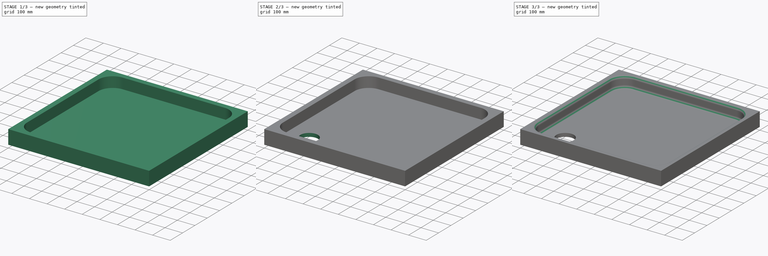
[diagram: build sequence overview — one tinted view per stage of 3, left to right]
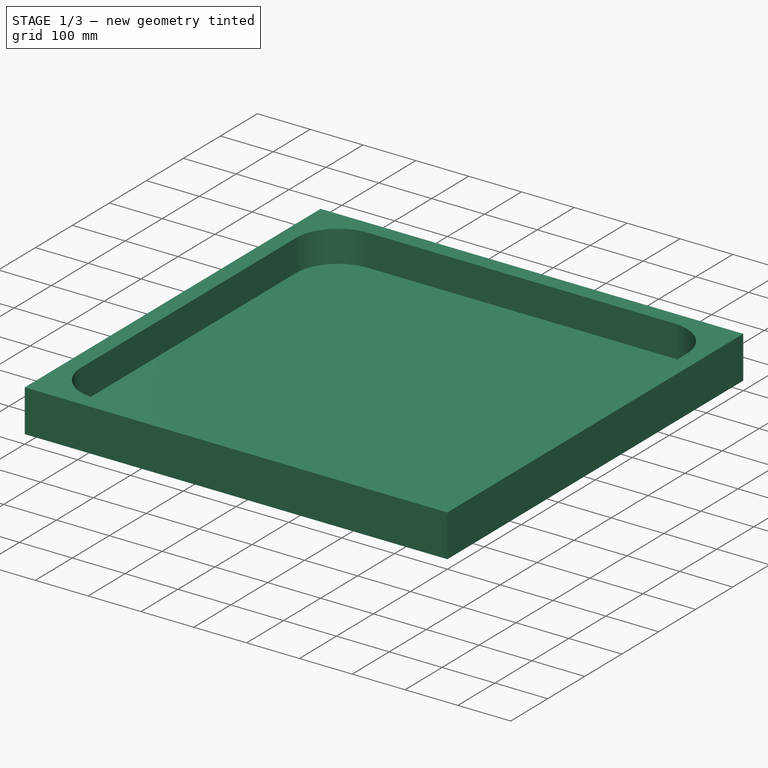
[diagram: stage 1 of 3 — iso view after this stage's code; geometry added in this stage tinted green]
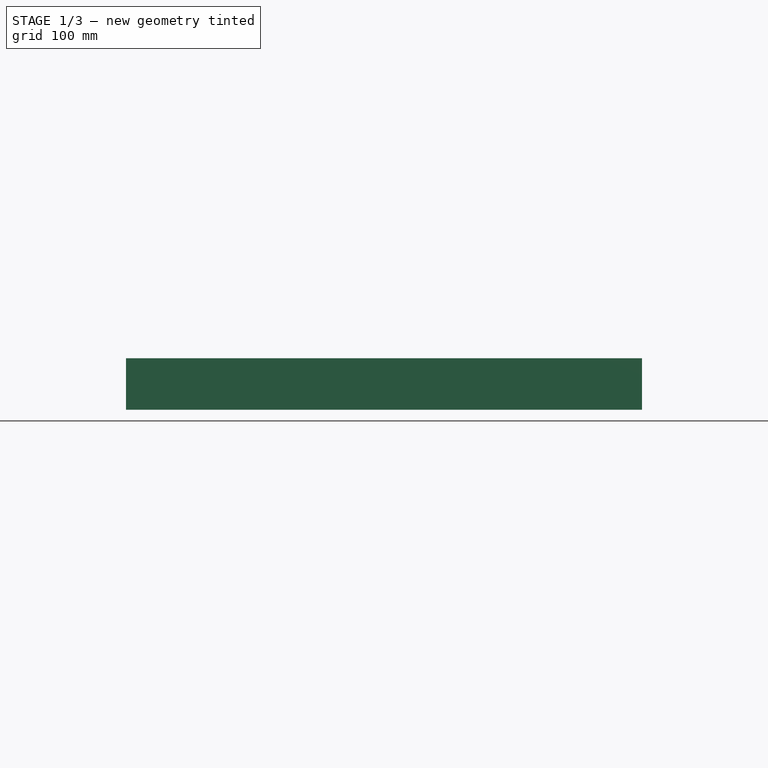
[diagram: stage 1 of 3 — front view after this stage's code; geometry added in this stage tinted green]
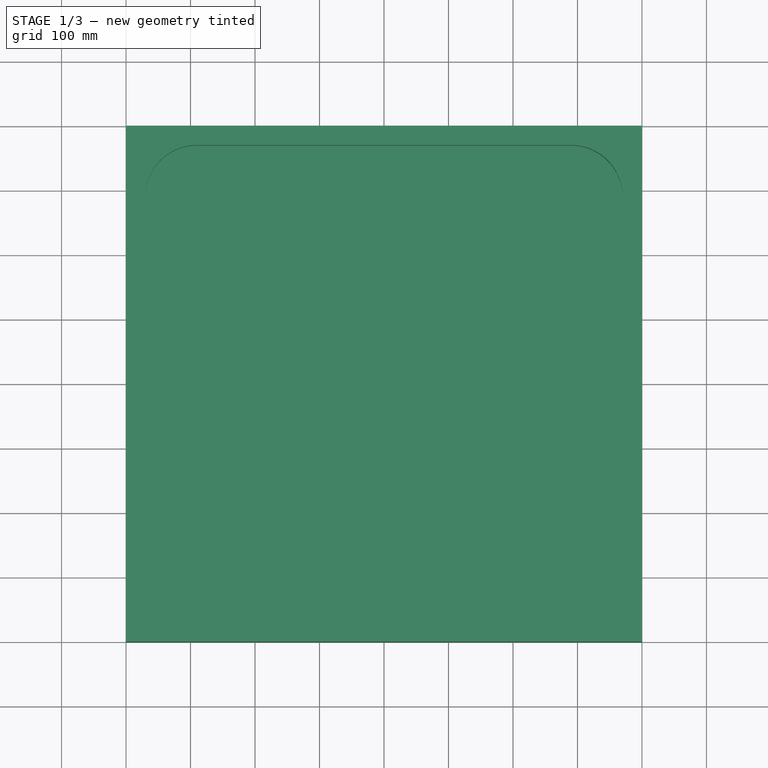
[diagram: stage 1 of 3 — top view after this stage's code; geometry added in this stage tinted green]
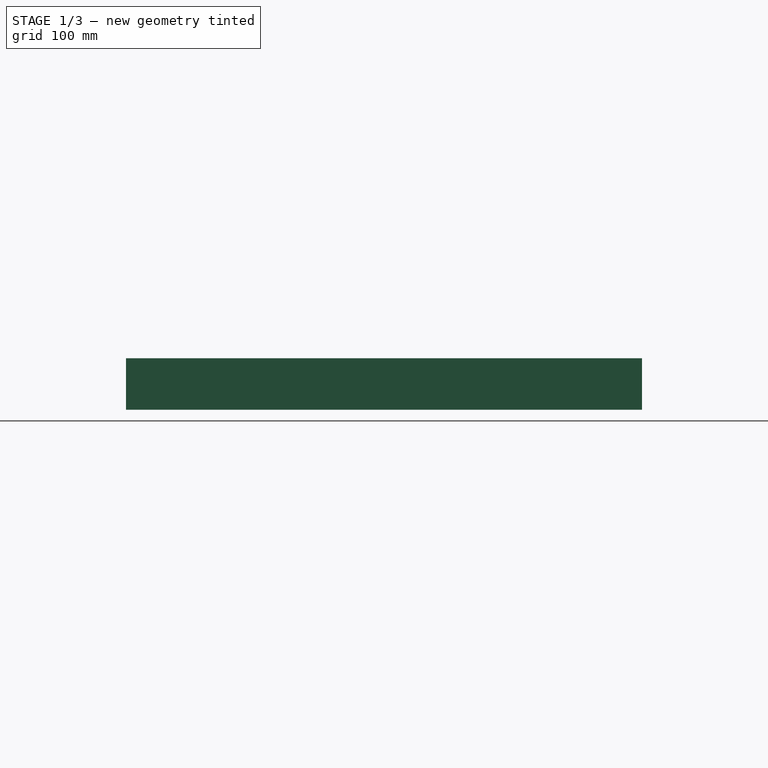
[diagram: stage 1 of 3 — right view after this stage's code; geometry added in this stage tinted green]
FCSTD DOCUMENT  (FreeCAD 0.17R8248 (Git))
Label: 80x80x8cm shower box
License: CreativeCommons Attribution
LicenseURL: http://creativecommons.org/licenses/by/4.0/
objects: Sketcher::SketchObject×3, PartDesign::Pocket×2, PartDesign::Fillet×2, PartDesign::Pad×1, PartDesign::Body×1
note: 12 computed .brp shape members not serialized (recipe doc carries the construction recipe); baked Part::Feature solids carry a one-line shape summary decoded from their .brp

FEATURE [Sketcher::SketchObject] Sketch
  MapMode = 5
  Support = -> [XY_Plane]
  sketch-geometry (4):
    g0: LineSegment StartX=0 StartY=0 StartZ=0 EndX=800 EndY=0 EndZ=0
    g1: LineSegment StartX=800 StartY=0 StartZ=0 EndX=800 EndY=800 EndZ=0
    g2: LineSegment StartX=800 StartY=800 StartZ=0 EndX=0 EndY=800 EndZ=0
    g3: LineSegment StartX=0 StartY=800 StartZ=0 EndX=0 EndY=0 EndZ=0
  constraints (11):
    c: Coincident(g0,g1)
    c: Coincident(g1,g2)
    c: Coincident(g2,g3)
    c: Coincident(g3,g0)
    c: Horizontal(g0)
    c: Horizontal(g2)
    c: Vertical(g1)
    c: Vertical(g3)
    c: Coincident(g0,g-1)
    c: DistanceX(g2,g2) = 800
    c: DistanceY(g3,g3) = 800
FEATURE [PartDesign::Pad] Pad
  Length = 80
  Length2 = 100
  Profile = -> Sketch
  Type = 0
FEATURE [Sketcher::SketchObject] Sketch001
  ExternalGeometry = -> [Pad]
  MapMode = 5
  Placement = pos=(0,0,80) rot=(0,0,1;0rad)
  Support = -> [Pad]
  sketch-geometry (8):
    g0: LineSegment StartX=30 StartY=110 StartZ=0 EndX=30 EndY=690 EndZ=0
    g1: ArcOfCircle CenterX=110 CenterY=690 CenterZ=0 NormalX=0 NormalY=0 NormalZ=1 Radius=80 StartAngle=1.5708 EndAngle=3.14159
    g2: LineSegment StartX=110 StartY=770 StartZ=0 EndX=690 EndY=770 EndZ=0
    g3: ArcOfCircle CenterX=690 CenterY=690 CenterZ=0 NormalX=0 NormalY=0 NormalZ=1 Radius=80 StartAngle=0 EndAngle=1.5708
    g4: LineSegment StartX=770 StartY=690 StartZ=0 EndX=770 EndY=110 EndZ=0
    g5: ArcOfCircle CenterX=690 CenterY=110 CenterZ=0 NormalX=0 NormalY=0 NormalZ=1 Radius=80 StartAngle=4.71239 EndAngle=6.28319
    g6: LineSegment StartX=690 StartY=30 StartZ=0 EndX=110 EndY=30 EndZ=0
    g7: ArcOfCircle CenterX=110 CenterY=110 CenterZ=0 NormalX=0 NormalY=0 NormalZ=1 Radius=80 StartAngle=3.14159 EndAngle=4.71239
  constraints (21):
    c: Vertical(g0)
    c: Tangent(g0,g1) = 1.5708
    c: Tangent(g1,g2) = 1.5708
    c: Tangent(g2,g3) = 1.5708
    c: Tangent(g3,g4) = 1.5708
    c: Tangent(g4,g5) = 1.5708
    c: Tangent(g5,g6) = 1.5708
    c: Tangent(g6,g7) = 1.5708
    c: Coincident(g0,g7)
    c: Horizontal(g6)
    c: Horizontal(g2)
    c: Vertical(g4)
    c: DistanceX(g-1,g0) = 30
    c: DistanceX(g4,g-4) = 30
    c: DistanceY(g-1,g6) = 30
    c: DistanceY(g1,g-3) = 30
    c: Radius(g1) = 80
    c: Radius(g3) = 80
    c: Radius(g5) = 80
    c: Radius(g7) = 80
    c: Tangent(g0,g7,g0) = 1.5708
FEATURE [PartDesign::Pocket] Pocket
  BaseFeature = -> Pad
  Length = 60
  Profile = -> Sketch001
  Type = 0
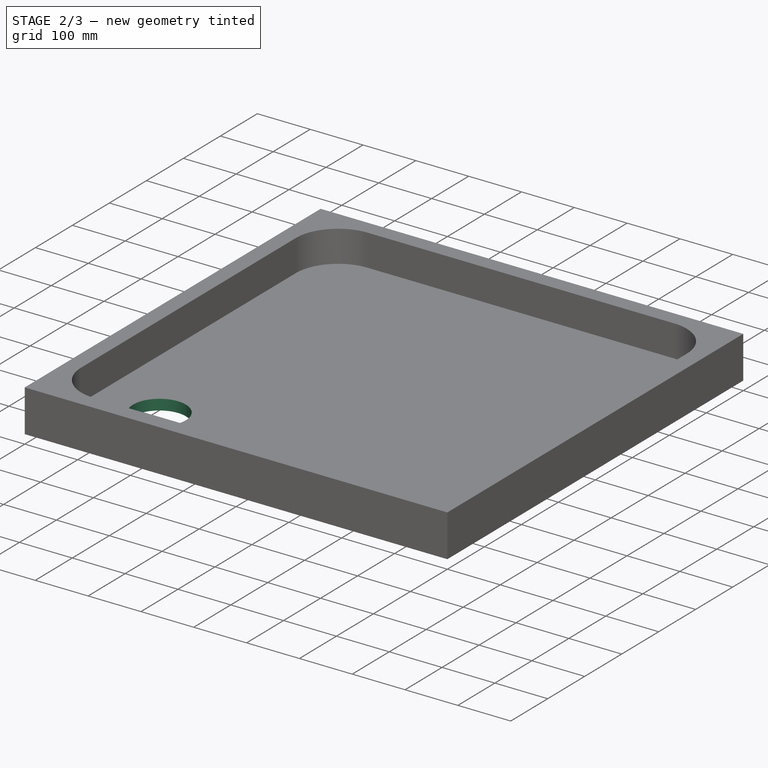
[diagram: stage 2 of 3 — iso view after this stage's code; geometry added in this stage tinted green]
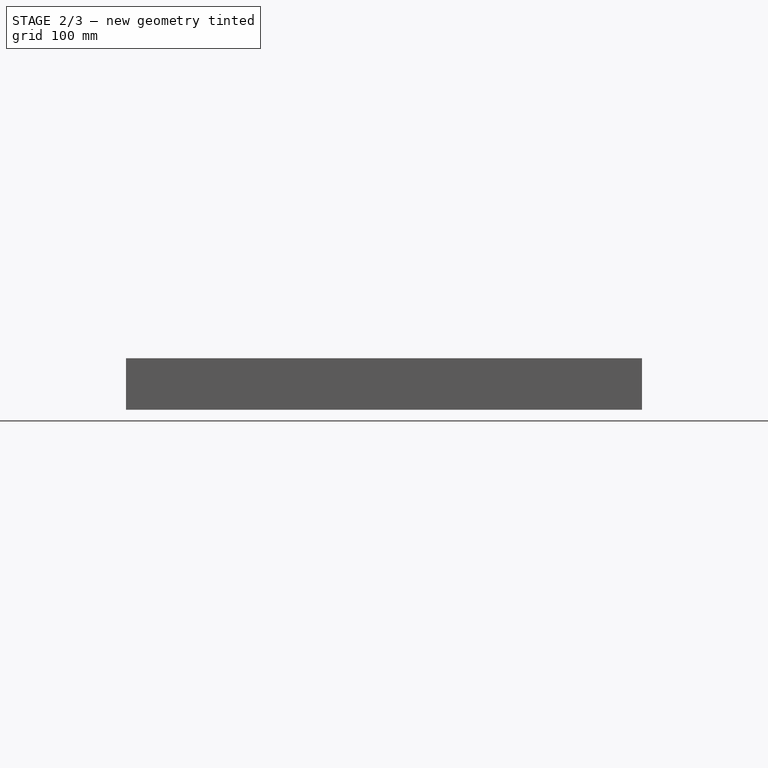
[diagram: stage 2 of 3 — front view after this stage's code; geometry added in this stage tinted green]
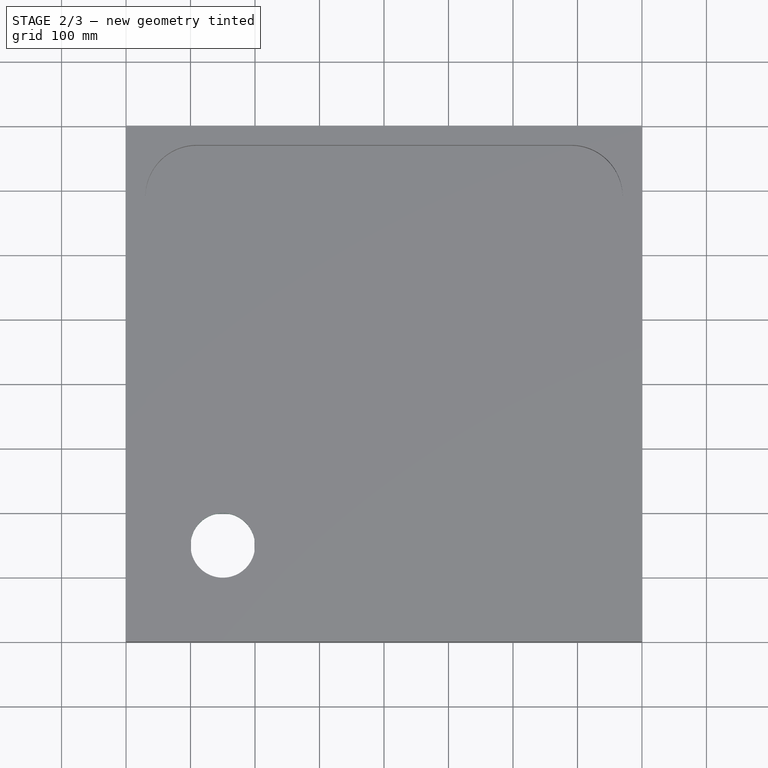
[diagram: stage 2 of 3 — top view after this stage's code; geometry added in this stage tinted green]
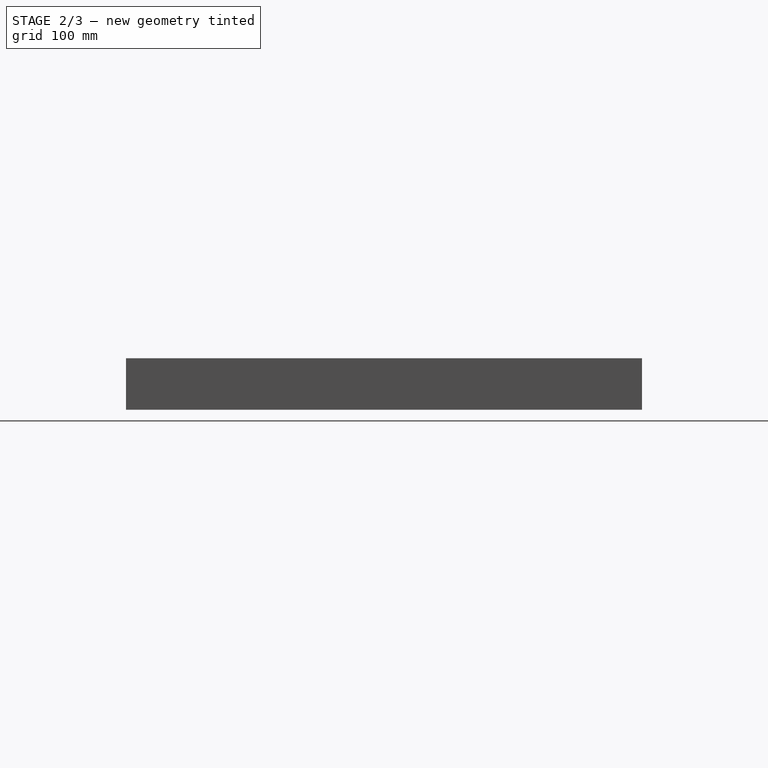
[diagram: stage 2 of 3 — right view after this stage's code; geometry added in this stage tinted green]
FEATURE [Sketcher::SketchObject] Sketch002
  ExternalGeometry = -> [Pocket]
  MapMode = 5
  Placement = pos=(0,0,20) rot=(0,0,1;0rad)
  Support = -> [Pocket]
  sketch-geometry (1):
    g0: Circle CenterX=150 CenterY=150 CenterZ=0 NormalX=0 NormalY=0 NormalZ=1 Radius=50
  constraints (3):
    c: DistanceY(g-3,g0) = 40
    c: DistanceX(g-3,g0) = 120
    c: Radius(g0) = 50
FEATURE [PartDesign::Pocket] Pocket001
  BaseFeature = -> Pocket
  Length = 20
  Profile = -> Sketch002
  Type = 0
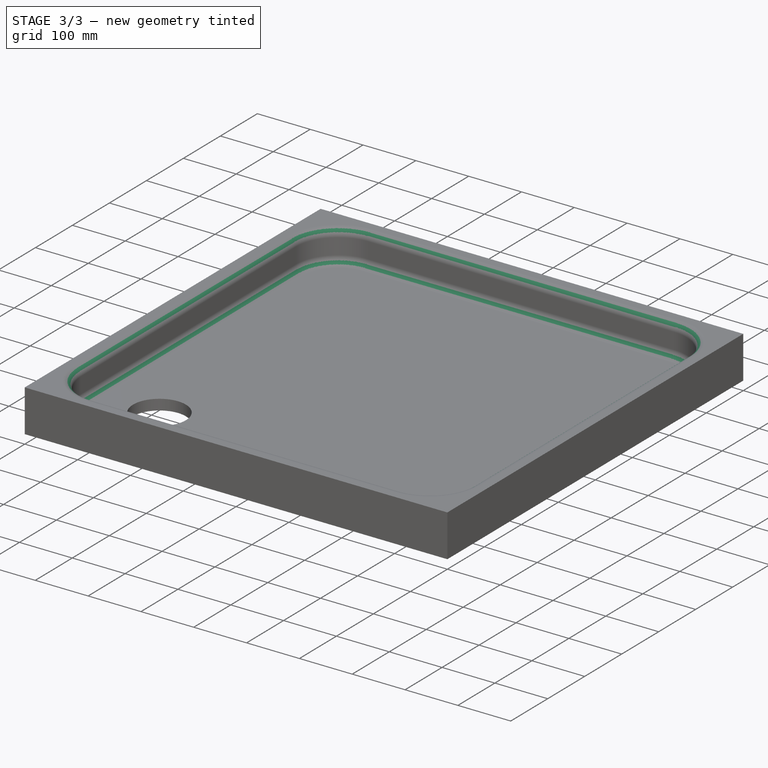
[diagram: stage 3 of 3 — iso view after this stage's code; geometry added in this stage tinted green]
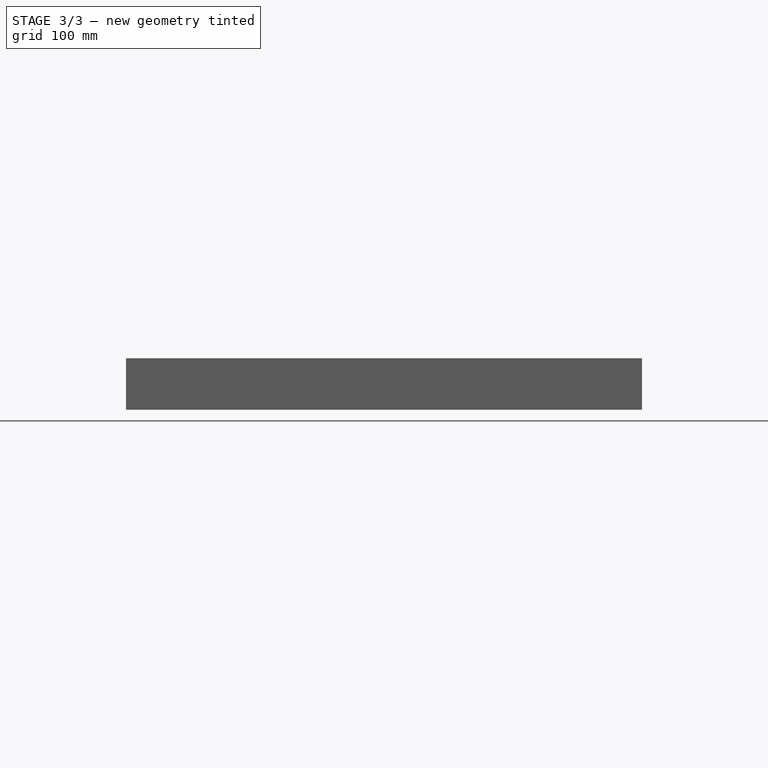
[diagram: stage 3 of 3 — front view after this stage's code; geometry added in this stage tinted green]
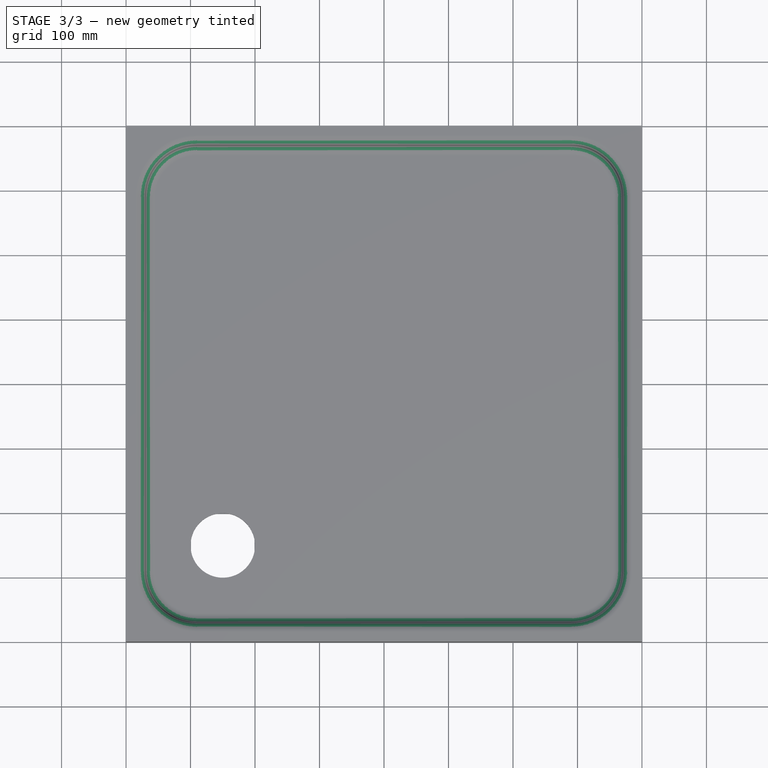
[diagram: stage 3 of 3 — top view after this stage's code; geometry added in this stage tinted green]
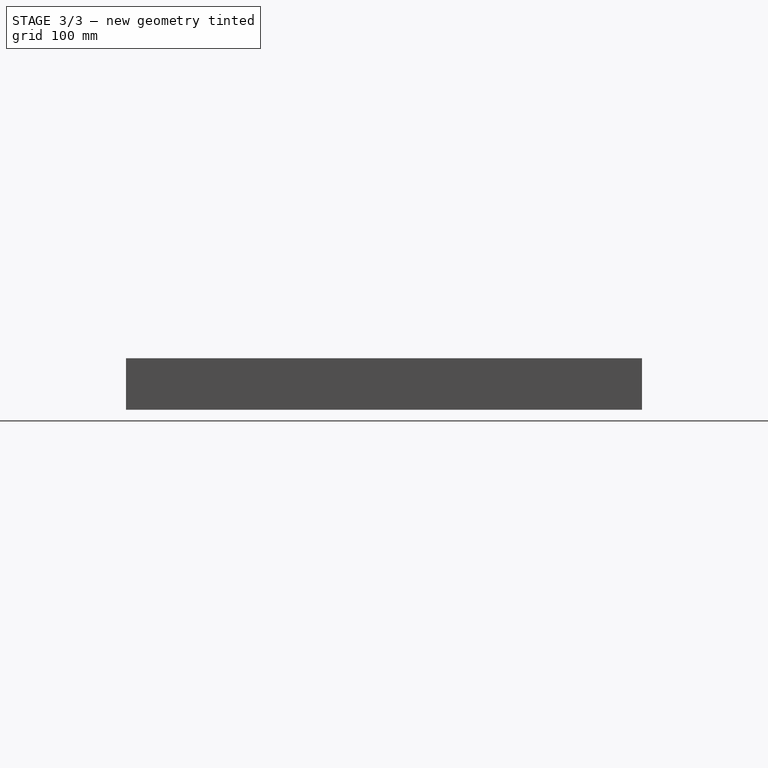
[diagram: stage 3 of 3 — right view after this stage's code; geometry added in this stage tinted green]
FEATURE [PartDesign::Fillet] Fillet
  Base = -> Pocket001 [Edge32,Edge29,Edge28,Edge25,Edge39,Edge37,Edge36,Edge33]
  BaseFeature = -> Pocket001
  Radius = 15
FEATURE [PartDesign::Fillet] Fillet001
  Base = -> Fillet [Edge17,Edge16,Edge15,Edge6,Edge20,Edge19,Edge18]
  BaseFeature = -> Fillet
  Radius = 15
FEATURE [PartDesign::Body] Body
  Model = -> [Sketch,Pad,Sketch001,Pocket,Sketch002,Pocket001,Fillet,Fillet001]
  Origin = -> BodyOrigin
  Tip = -> Fillet001
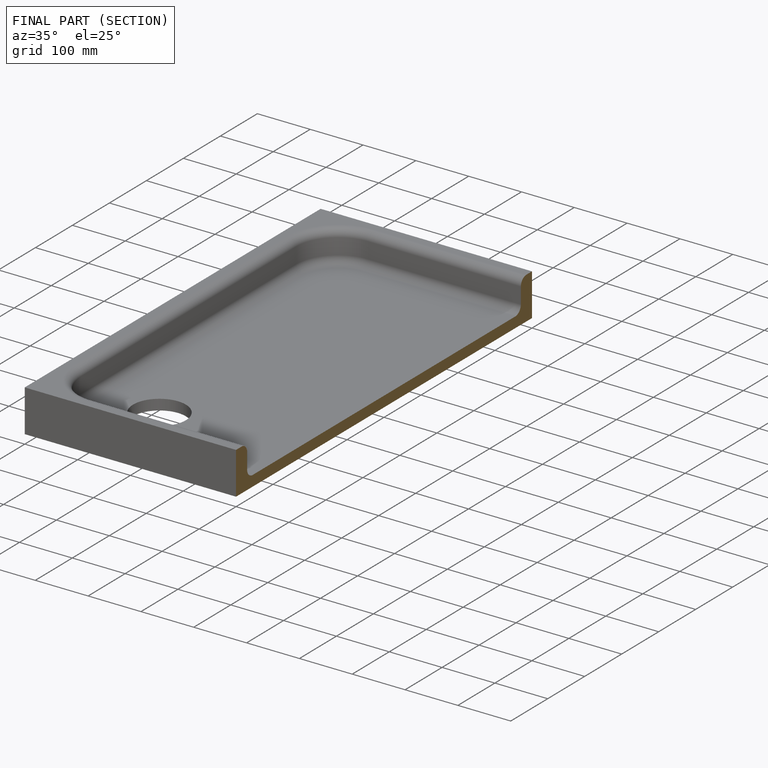
[diagram: finished part — half-section view (interior)]
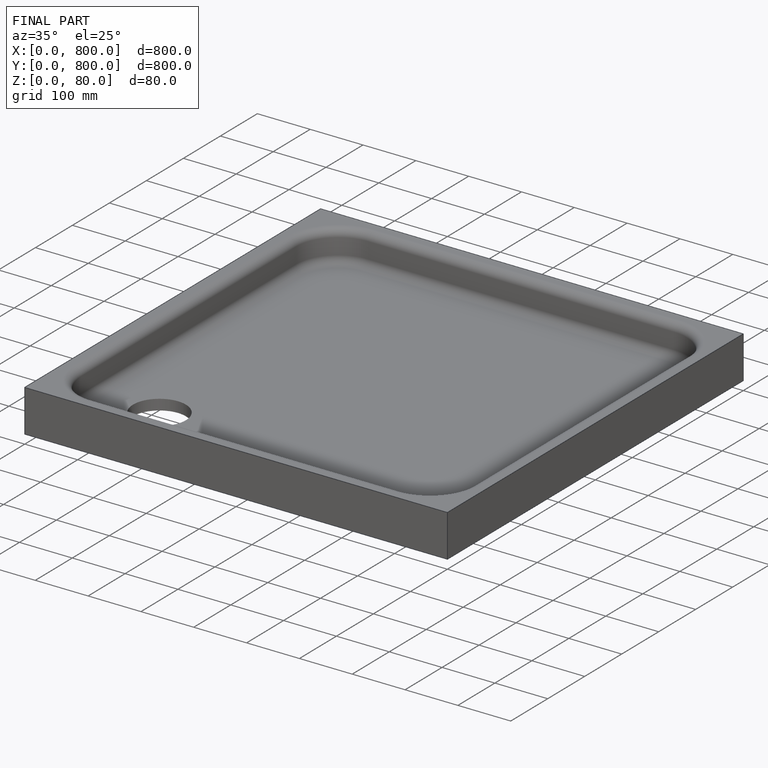
[diagram: finished part — iso view with bounding-box wireframe]
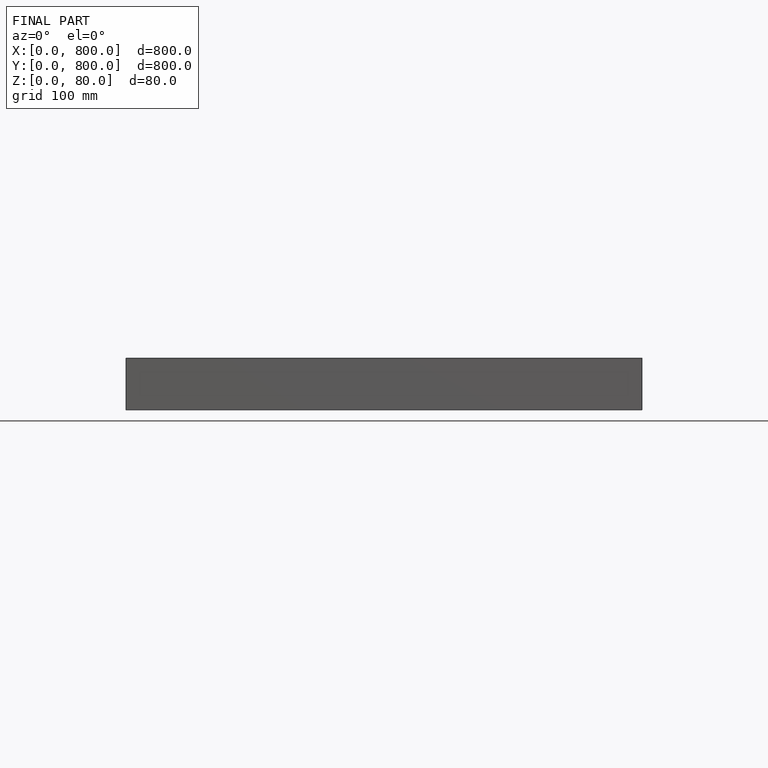
[diagram: finished part — front view with bounding-box wireframe]
